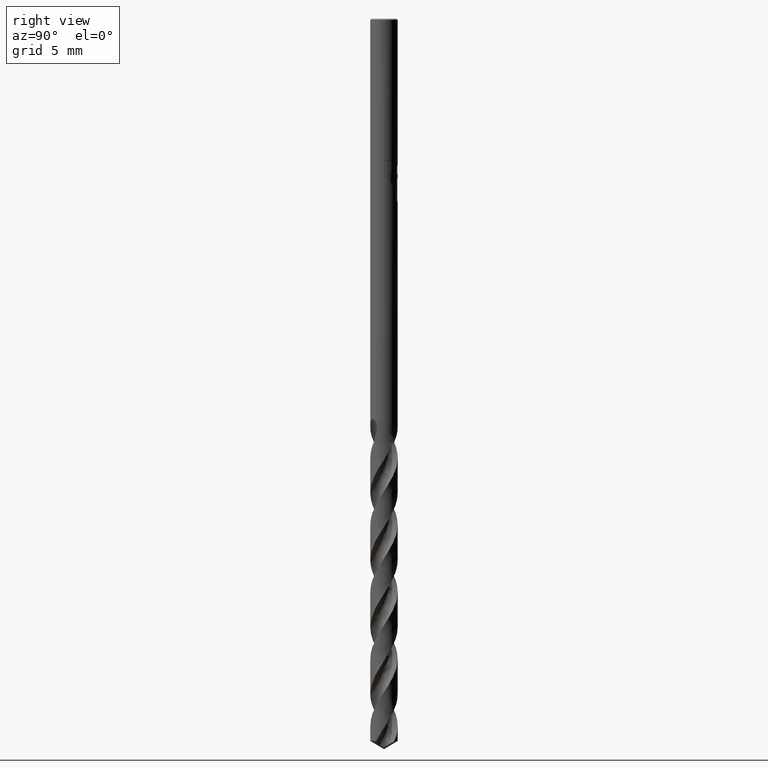
[diagram: clean part render]
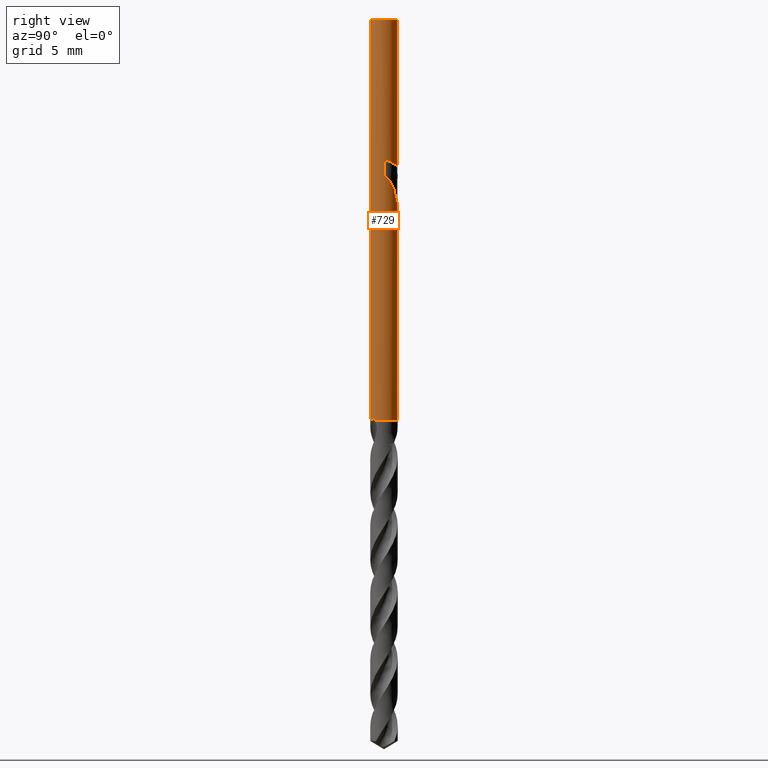
[diagram: same view with one face highlighted and labeled with its STEP entity id]
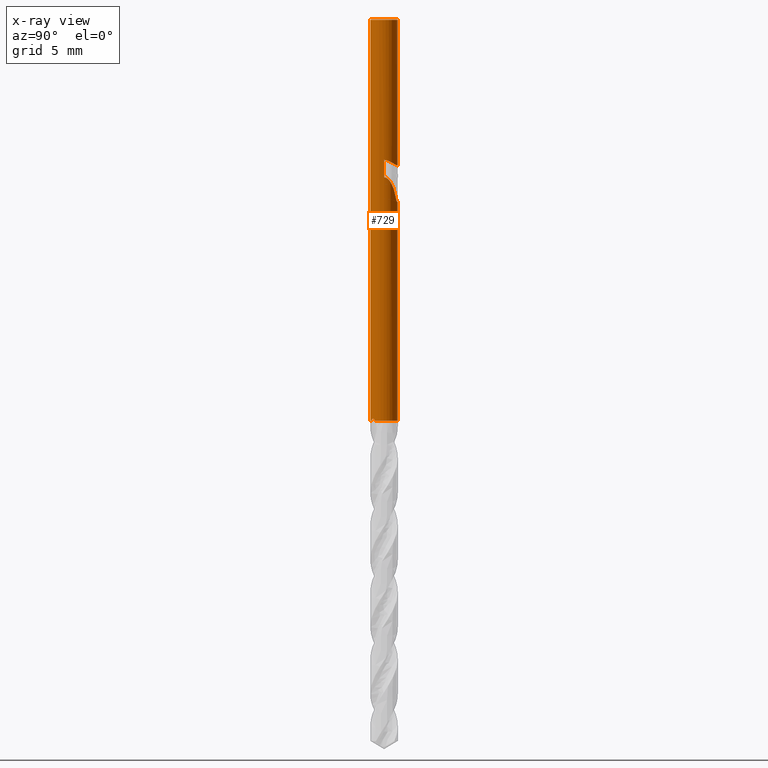
[diagram: x-ray of the same camera — body ghosted, the highlighted face saturated]
A machine part, right view. The second image highlights one B-rep face of the part: STEP entity #729.
The next image is the same camera in x-ray: the body ghosted, the highlighted face saturated — about 0% of this face is hidden behind the body in this view.
In plain terms, the highlighted cylindrical surface (edge-blend (fillet) strip) has radius 0.75 mm, axis along (-0, -0, 1).
Its self-contained STEP definition (entity closure, byte-faithful):
#271=EDGE_CURVE('',#643,#703,#774,.T.);
#285=VERTEX_POINT('',#788);
#289=VERTEX_POINT('',#792);
#297=VERTEX_POINT('',#801);
#317=VERTEX_POINT('',#821);
#333=EDGE_CURVE('',#289,#643,#838,.T.);
#343=VERTEX_POINT('',#849);
#353=EDGE_CURVE('',#289,#343,#859,.T.);
#373=VERTEX_POINT('',#881);
#421=VERTEX_POINT('',#934);
#453=EDGE_CURVE('',#421,#285,#971,.T.);
#513=EDGE_CURVE('',#343,#527,#1037,.T.);
#527=VERTEX_POINT('',#1054);
#541=VERTEX_POINT('',#1070);
#587=EDGE_CURVE('',#297,#285,#1119,.T.);
#595=EDGE_CURVE('',#703,#541,#1128,.T.);
#631=EDGE_CURVE('',#373,#527,#1166,.T.);
#633=EDGE_CURVE('',#541,#317,#1168,.T.);
#643=VERTEX_POINT('',#1179);
#649=EDGE_CURVE('',#421,#317,#1185,.T.);
#695=EDGE_CURVE('',#373,#297,#1233,.T.);
#703=VERTEX_POINT('',#1241);
#729=ADVANCED_FACE('',(#1270),#1271,.T.);
#774=ELLIPSE('',#1312,2.28599593002733,0.75);
#788=CARTESIAN_POINT('',(9.18454765366783E-017,-0.75,-0.0600000000000005));
#792=CARTESIAN_POINT('',(-1.0146208194845E-016,0.75,-10.0310253601033));
#801=CARTESIAN_POINT('',(9.18455486407948E-017,-0.75,-22.0));
#821=CARTESIAN_POINT('',(-5.78530632776888E-017,0.75,-8.02326881177431));
#838=B_SPLINE_CURVE_WITH_KNOTS('',3,(#1858,#1859,#1860,#1861,#1862,#1863,#1864,#1865,#1866,#1867,#1868,#1869,#1870,#1871,#1872,#1873,#1874),.UNSPECIFIED.,.F.,.F.,(4,3,2,2,2,2,2,4),(-0.28737094661706,0.0,0.287370946617061,0.574741893234121,0.860868530668837,1.14699516810355,1.4350491308222,1.72310309354084),.UNSPECIFIED.);
#849=CARTESIAN_POINT('',(-9.18454044325618E-017,0.75,-22.0));
#859=LINE('',#2122,#2123);
#881=CARTESIAN_POINT('',(0.259856016207046,-0.70354449101745,-22.0));
#934=CARTESIAN_POINT('',(0.0,0.75,-0.0600000000000005));
#971=CIRCLE('',#3305,0.75);
#1037=CIRCLE('',#4050,0.75);
#1054=CARTESIAN_POINT('',(0.566158218177642,-0.491899249836709,-22.0));
#1070=CARTESIAN_POINT('',(0.750000000000328,0.0,-7.7273139882503));
#1119=LINE('',#4637,#4638);
#1128=LINE('',#5286,#5287);
#1166=B_SPLINE_CURVE_WITH_KNOTS('',3,(#6447,#6448,#6449,#6450,#6451,#6452,#6453,#6454,#6455,#6456,#6457,#6458),.UNSPECIFIED.,.F.,.F.,(4,2,2,2,2,4),(0.0,0.139198338031143,0.224391982269441,0.294888337998617,0.363148551867905,0.436125188364918),.UNSPECIFIED.);
#1168=B_SPLINE_CURVE_WITH_KNOTS('',3,(#6461,#6462,#6463,#6464,#6465,#6466,#6467,#6468,#6469,#6470,#6471,#6472,#6473,#6474,#6475,#6476,#6477,#6478,#6479,#6480,#6481,#6482,#6483,#6484,#6485,#6486,#6487,#6488),.UNSPECIFIED.,.F.,.F.,(4,2,2,2,2,2,2,2,2,2,2,2,2,4),(4.05433291386163,4.30394743751851,4.55356196117539,4.80317648483228,4.9523820823497,5.10158767986712,5.32260918267572,5.54363068548431,5.77372791715315,6.003825148822,6.22987315254989,6.45592115627777,6.68196916000565,6.90801716373354),.UNSPECIFIED.);
#1179=CARTESIAN_POINT('',(0.29010312703583,0.691621410660509,-9.9998328990228));
#1185=LINE('',#6667,#6668);
#1233=CIRCLE('',#7856,0.75);
#1241=CARTESIAN_POINT('',(0.75,0.0,-8.67565962497222));
#1270=FACE_OUTER_BOUND('',#8096,.T.);
#1271=CYLINDRICAL_SURFACE('',#8097,0.75);
#1312=AXIS2_PLACEMENT_3D('',#8605,#8606,#8607);
#1858=CARTESIAN_POINT('',(-0.692055193933249,-0.289066789081715,-9.88990727502224));
#1859=CARTESIAN_POINT('',(-0.730570369964297,-0.196857390143947,-9.87272027568375));
#1860=CARTESIAN_POINT('',(-0.75,-0.0957903155390201,-9.86267183969037));
#1861=CARTESIAN_POINT('',(-0.75,0.0,-9.86267183969037));
#1862=CARTESIAN_POINT('',(-0.75,0.0957903155390202,-9.86267183969037));
#1863=CARTESIAN_POINT('',(-0.730570369964297,0.196857390143948,-9.87272027568375));
#1864=CARTESIAN_POINT('',(-0.653540017902506,0.381276188019529,-9.90709427436116));
#1865=CARTESIAN_POINT('',(-0.59598838280904,0.464775431168711,-9.93073479546527));
#1866=CARTESIAN_POINT('',(-0.464122433811407,0.596433888401198,-9.97341744627364));
#1867=CARTESIAN_POINT('',(-0.380661668868162,0.653885934545166,-9.99545133895396));
#1868=CARTESIAN_POINT('',(-0.196325768359133,0.730702631521262,-10.025276499728));
#1869=CARTESIAN_POINT('',(-0.0953610829046801,0.75,-10.0326862653089));
#1870=CARTESIAN_POINT('',(0.096003427245049,0.75,-10.0293532671781));
#1871=CARTESIAN_POINT('',(0.197270784658573,0.730468420915227,-10.0183072393365));
#1872=CARTESIAN_POINT('',(0.381767163621633,0.653263870552839,-9.98159128112167));
#1873=CARTESIAN_POINT('',(0.46510257787453,0.595669891013887,-9.95629091980264));
#1874=CARTESIAN_POINT('',(0.530784429884974,0.529875352315696,-9.93228202704358));
#2122=CARTESIAN_POINT('',(-9.18454044325618E-017,0.75,-6.03));
#2123=VECTOR('',#8663,1.0);
#3305=AXIS2_PLACEMENT_3D('',#8785,#8786,#8787);
#4050=AXIS2_PLACEMENT_3D('',#8881,#8882,#8883);
#4637=CARTESIAN_POINT('',(9.18455486407948E-017,-0.75,-6.03));
#4638=VECTOR('',#8991,1.0);
#5286=CARTESIAN_POINT('',(0.75,0.0,-8.37936772801303));
#5287=VECTOR('',#9002,1.0);
#6447=CARTESIAN_POINT('',(0.259856016207043,-0.703544491017451,-22.0));
#6448=CARTESIAN_POINT('',(0.292136551302391,-0.691621590109254,-21.9688757316879));
#6449=CARTESIAN_POINT('',(0.328180013494061,-0.675736708160224,-21.9398984335603));
#6450=CARTESIAN_POINT('',(0.388271283806629,-0.64220555901176,-21.9108350821573));
#6451=CARTESIAN_POINT('',(0.411565386291544,-0.627627192057729,-21.903902871146));
#6452=CARTESIAN_POINT('',(0.453741148319192,-0.597635420185957,-21.9027697116251));
#6453=CARTESIAN_POINT('',(0.471667759672222,-0.583534663516714,-21.9066167307762));
#6454=CARTESIAN_POINT('',(0.504504590747582,-0.555363061667342,-21.922596018712));
#6455=CARTESIAN_POINT('',(0.518773099581353,-0.541934730289295,-21.9341075752196));
#6456=CARTESIAN_POINT('',(0.544843919218009,-0.515761047848807,-21.963119748671));
#6457=CARTESIAN_POINT('',(0.556326829065907,-0.503214822575556,-21.9808809852541));
#6458=CARTESIAN_POINT('',(0.566158218177642,-0.491899249836709,-22.0));
#6461=CARTESIAN_POINT('',(0.709048094295613,-0.244439767582445,-7.78153378660093));
#6462=CARTESIAN_POINT('',(0.73571057727536,-0.16709962518411,-7.7495010773497));
#6463=CARTESIAN_POINT('',(0.75,-0.0832048412189605,-7.72731398825078));
#6464=CARTESIAN_POINT('',(0.75,0.0832048412189605,-7.72731398825078));
#6465=CARTESIAN_POINT('',(0.73571057727536,0.16709962518411,-7.7495010773497));
#6466=CARTESIAN_POINT('',(0.682385611316018,0.32177990998068,-7.81356649585252));
#6467=CARTESIAN_POINT('',(0.643138244618554,0.393123099305739,-7.85391146030402));
#6468=CARTESIAN_POINT('',(0.570432780122505,0.489012517282101,-7.91041092306115));
#6469=CARTESIAN_POINT('',(0.537102699526215,0.525874450023509,-7.93300099063537));
#6470=CARTESIAN_POINT('',(0.462178255999755,0.592802255697634,-7.97369650586591));
#6471=CARTESIAN_POINT('',(0.420520566175264,0.622860274579999,-7.99169818808889));
#6472=CARTESIAN_POINT('',(0.318020510963384,0.682929974663269,-8.02509218977419));
#6473=CARTESIAN_POINT('',(0.244964989813229,0.71313442203293,-8.03908274992128));
#6474=CARTESIAN_POINT('',(0.0931734638004512,0.748256143896572,-8.04173159310686));
#6475=CARTESIAN_POINT('',(0.0144301200117672,0.753159066408424,-8.03015435721521));
#6476=CARTESIAN_POINT('',(-0.128872104140218,0.74247170024054,-7.98585689376399));
#6477=CARTESIAN_POINT('',(-0.2015610991314,0.72558795716508,-7.94989030983147));
#6478=CARTESIAN_POINT('',(-0.328521007746086,0.677627265089983,-7.85797358157142));
#6479=CARTESIAN_POINT('',(-0.382942679574438,0.646862785006073,-7.80206896357968));
#6480=CARTESIAN_POINT('',(-0.465874095551028,0.589871171910229,-7.68808187741892));
#6481=CARTESIAN_POINT('',(-0.501637246001275,0.558572950834447,-7.62074855895039));
#6482=CARTESIAN_POINT('',(-0.54987468763872,0.511157227024796,-7.47539951039169));
#6483=CARTESIAN_POINT('',(-0.562348199187247,0.496250443698402,-7.39699134716274));
#6484=CARTESIAN_POINT('',(-0.562348199187247,0.496250443698402,-7.24629267801082));
#6485=CARTESIAN_POINT('',(-0.54987468763872,0.511157227024796,-7.16788451478187));
#6486=CARTESIAN_POINT('',(-0.501637246001276,0.558572950834447,-7.02253546622318));
#6487=CARTESIAN_POINT('',(-0.465874095551029,0.589871171910229,-6.95520214775465));
#6488=CARTESIAN_POINT('',(-0.424776481078457,0.618114019516305,-6.89871453969054));
#6667=CARTESIAN_POINT('',(-9.18454044325618E-017,0.75,-6.03));
#6668=VECTOR('',#9059,1.0);
#7856=AXIS2_PLACEMENT_3D('',#9082,#9083,#9084);
#8096=EDGE_LOOP('',(#9114,#9115,#9116,#9117,#9118,#9119,#9120,#9121,#9122,#9123,#9124));
#8097=AXIS2_PLACEMENT_3D('',#9125,#9126,#9127);
#8605=CARTESIAN_POINT('',(0.0,0.0,-10.8351219173269));
#8606=DIRECTION('',(0.944648353914092,0.0,-0.328084573619969));
#8607=DIRECTION('',(0.328084573619969,-0.0,0.944648353914092));
#8663=DIRECTION('',(0.0,0.0,-1.0));
#8785=CARTESIAN_POINT('',(0.0,0.0,-0.0600000000000005));
#8786=DIRECTION('',(0.0,0.0,-1.0));
#8787=DIRECTION('',(0.0,1.0,0.0));
#8881=CARTESIAN_POINT('',(0.0,0.0,-22.0));
#8882=DIRECTION('',(0.0,0.0,-1.0));
#8883=DIRECTION('',(0.0,-1.0,0.0));
#8991=DIRECTION('',(-0.0,-0.0,1.0));
#9002=DIRECTION('',(-0.0,-0.0,1.0));
#9059=DIRECTION('',(0.0,0.0,-1.0));
#9082=CARTESIAN_POINT('',(0.0,0.0,-22.0));
#9083=DIRECTION('',(0.0,0.0,-1.0));
#9084=DIRECTION('',(0.0,-1.0,0.0));
#9114=ORIENTED_EDGE('',*,*,#649,.F.);
#9115=ORIENTED_EDGE('',*,*,#453,.T.);
#9116=ORIENTED_EDGE('',*,*,#587,.F.);
#9117=ORIENTED_EDGE('',*,*,#695,.F.);
#9118=ORIENTED_EDGE('',*,*,#631,.T.);
#9119=ORIENTED_EDGE('',*,*,#513,.F.);
#9120=ORIENTED_EDGE('',*,*,#353,.F.);
#9121=ORIENTED_EDGE('',*,*,#333,.T.);
#9122=ORIENTED_EDGE('',*,*,#271,.T.);
#9123=ORIENTED_EDGE('',*,*,#595,.T.);
#9124=ORIENTED_EDGE('',*,*,#633,.T.);
#9125=CARTESIAN_POINT('',(0.0,0.0,-6.03));
#9126=DIRECTION('',(-0.0,-0.0,1.0));
#9127=DIRECTION('',(0.0,1.0,0.0));